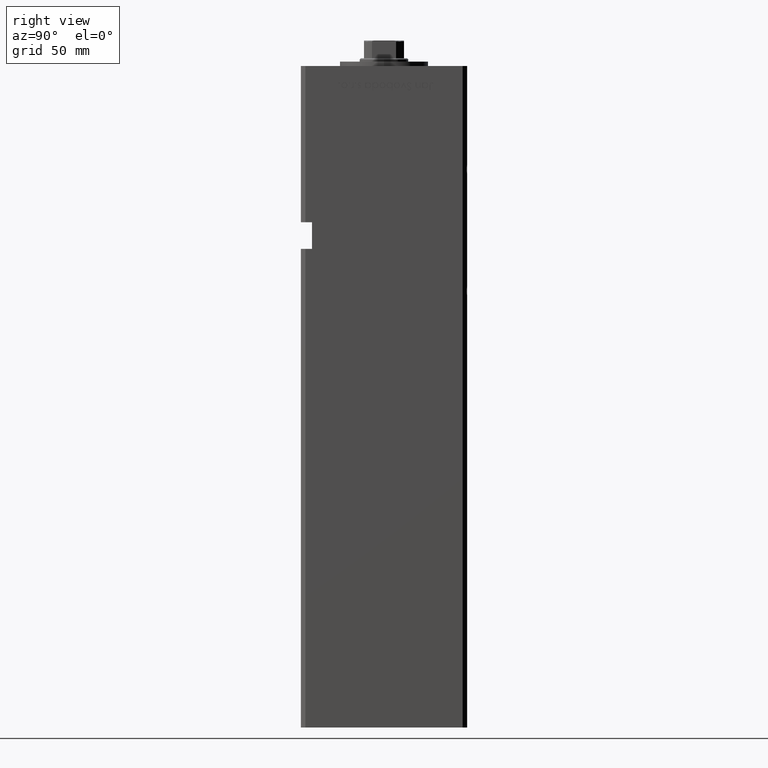
[diagram: clean part render]
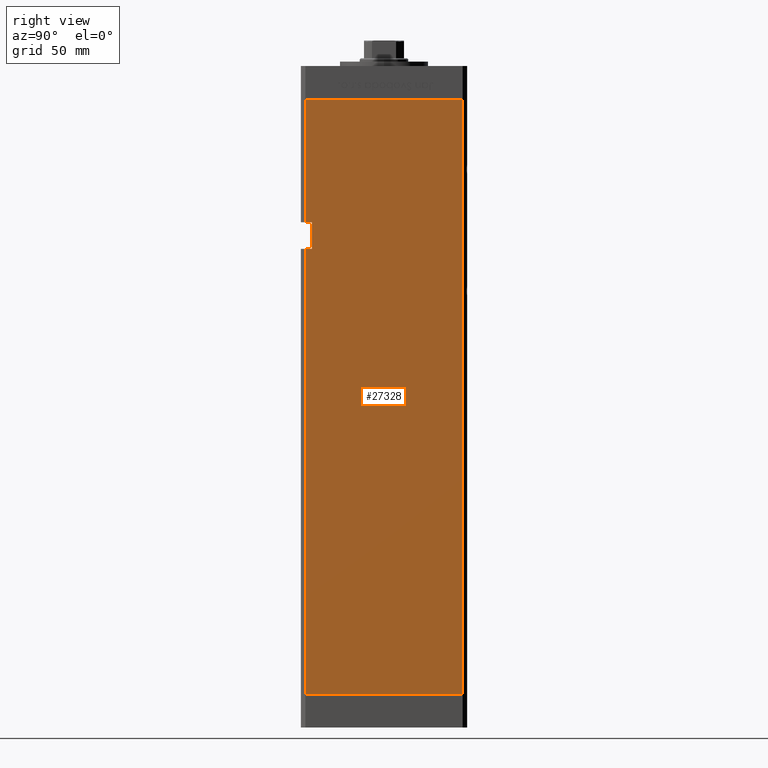
[diagram: same view with one face highlighted and labeled with its STEP entity id]
A machine part, right view. The second image highlights one B-rep face of the part: STEP entity #27328.
In plain terms, the highlighted planar face has unit normal (1, -0, 0).
Its self-contained STEP definition (entity closure, byte-faithful):
#106 = DIRECTION ( 'NONE',  ( 3.909236002201255146E-16, 1.000000000000000000, 0.000000000000000000 ) ) ;
#888 = EDGE_CURVE ( 'NONE', #11026, #38094, #10050, .T. ) ;
#3496 = CARTESIAN_POINT ( 'NONE',  ( 42.50000000000001421, 35.50000000000000711, 0.000000000000000000 ) ) ;
#3582 = ORIENTED_EDGE ( 'NONE', *, *, #48638, .T. ) ;
#5141 = CARTESIAN_POINT ( 'NONE',  ( 42.49999999999998579, -32.50000000000000000, 201.0000000000000000 ) ) ;
#5276 = EDGE_CURVE ( 'NONE', #11026, #23385, #35436, .T. ) ;
#5772 = EDGE_LOOP ( 'NONE', ( #23416, #49137, #46337, #38809, #45162, #3582, #27684, #50198 ) ) ;
#6273 = EDGE_CURVE ( 'NONE', #50740, #19181, #15677, .T. ) ;
#6628 = VECTOR ( 'NONE', #39196, 1000.000000000000000 ) ;
#7871 = DIRECTION ( 'NONE',  ( -3.909236002201255146E-16, -1.000000000000000000, 0.000000000000000000 ) ) ;
#10050 = LINE ( 'NONE', #22697, #42603 ) ;
#11026 = VERTEX_POINT ( 'NONE', #5141 ) ;
#11666 = VECTOR ( 'NONE', #13828, 1000.000000000000000 ) ;
#13558 = LINE ( 'NONE', #30253, #11666 ) ;
#13828 = DIRECTION ( 'NONE',  ( -3.909236002201255146E-16, -1.000000000000000000, 0.000000000000000000 ) ) ;
#15677 = LINE ( 'NONE', #32098, #33321 ) ;
#15953 = FACE_OUTER_BOUND ( 'NONE', #5772, .T. ) ;
#16286 = CARTESIAN_POINT ( 'NONE',  ( 42.49999999999998579, -35.50000000000000711, 268.5000000000000000 ) ) ;
#19181 = VERTEX_POINT ( 'NONE', #33276 ) ;
#19636 = VECTOR ( 'NONE', #29904, 1000.000000000000000 ) ;
#20217 = EDGE_CURVE ( 'NONE', #38094, #38653, #53122, .T. ) ;
#22697 = CARTESIAN_POINT ( 'NONE',  ( 42.49999999999998579, -32.50000000000000711, 201.0000000000000000 ) ) ;
#22752 = CARTESIAN_POINT ( 'NONE',  ( 42.50000000000001421, 35.50000000000000711, 268.5000000000000000 ) ) ;
#23015 = LINE ( 'NONE', #22752, #30390 ) ;
#23385 = VERTEX_POINT ( 'NONE', #44117 ) ;
#23416 = ORIENTED_EDGE ( 'NONE', *, *, #888, .T. ) ;
#27099 = CARTESIAN_POINT ( 'NONE',  ( 42.49999999999998579, -32.50000000000000711, 213.0000000000000284 ) ) ;
#27328 = ADVANCED_FACE ( 'NONE', ( #15953 ), #32373, .T. ) ;
#27684 = ORIENTED_EDGE ( 'NONE', *, *, #44813, .F. ) ;
#28277 = CARTESIAN_POINT ( 'NONE',  ( 42.49999999999998579, -35.50000000000000711, 268.5000000000000000 ) ) ;
#29137 = CARTESIAN_POINT ( 'NONE',  ( 42.50000000000001421, 35.50000000000000711, 268.5000000000000000 ) ) ;
#29372 = CARTESIAN_POINT ( 'NONE',  ( 42.49999999999998579, -32.50000000000000711, 213.0000000000000284 ) ) ;
#29904 = DIRECTION ( 'NONE',  ( -0.000000000000000000, -1.000000000000000000, -0.000000000000000000 ) ) ;
#30253 = CARTESIAN_POINT ( 'NONE',  ( 42.50000000000001421, 35.50000000000000711, 0.000000000000000000 ) ) ;
#30390 = VECTOR ( 'NONE', #39402, 1000.000000000000000 ) ;
#30459 = CARTESIAN_POINT ( 'NONE',  ( 42.49999999999998579, -35.50000000000000711, 0.000000000000000000 ) ) ;
#30511 = DIRECTION ( 'NONE',  ( -0.000000000000000000, -1.000000000000000000, -0.000000000000000000 ) ) ;
#30932 = VECTOR ( 'NONE', #49242, 1000.000000000000000 ) ;
#31104 = EDGE_CURVE ( 'NONE', #50740, #49792, #23015, .T. ) ;
#32098 = CARTESIAN_POINT ( 'NONE',  ( 42.50000000000001421, 35.50000000000000711, 268.5000000000000000 ) ) ;
#32373 = PLANE ( 'NONE',  #39852 ) ;
#32965 = DIRECTION ( 'NONE',  ( -0.000000000000000000, -0.000000000000000000, -1.000000000000000000 ) ) ;
#33276 = CARTESIAN_POINT ( 'NONE',  ( 42.49999999999998579, -35.50000000000000711, 268.5000000000000000 ) ) ;
#33321 = VECTOR ( 'NONE', #7871, 1000.000000000000000 ) ;
#33422 = DIRECTION ( 'NONE',  ( 1.000000000000000000, -3.909236002201255146E-16, 0.000000000000000000 ) ) ;
#35329 = VECTOR ( 'NONE', #32965, 1000.000000000000000 ) ;
#35436 = LINE ( 'NONE', #27099, #6628 ) ;
#37512 = VERTEX_POINT ( 'NONE', #46357 ) ;
#38088 = CARTESIAN_POINT ( 'NONE',  ( 42.49999999999998579, -35.50000000000000711, 201.0000000000000000 ) ) ;
#38094 = VERTEX_POINT ( 'NONE', #38088 ) ;
#38319 = EDGE_CURVE ( 'NONE', #49792, #38653, #13558, .T. ) ;
#38653 = VERTEX_POINT ( 'NONE', #30459 ) ;
#38809 = ORIENTED_EDGE ( 'NONE', *, *, #31104, .F. ) ;
#39196 = DIRECTION ( 'NONE',  ( -0.000000000000000000, -0.000000000000000000, 1.000000000000000000 ) ) ;
#39402 = DIRECTION ( 'NONE',  ( -0.000000000000000000, -0.000000000000000000, -1.000000000000000000 ) ) ;
#39852 = AXIS2_PLACEMENT_3D ( 'NONE', #29137, #33422, #106 ) ;
#42603 = VECTOR ( 'NONE', #30511, 1000.000000000000000 ) ;
#44117 = CARTESIAN_POINT ( 'NONE',  ( 42.49999999999998579, -32.50000000000000711, 213.0000000000000284 ) ) ;
#44197 = CARTESIAN_POINT ( 'NONE',  ( 42.50000000000001421, 35.50000000000000711, 268.5000000000000000 ) ) ;
#44813 = EDGE_CURVE ( 'NONE', #23385, #37512, #49524, .T. ) ;
#44941 = LINE ( 'NONE', #28277, #30932 ) ;
#45162 = ORIENTED_EDGE ( 'NONE', *, *, #6273, .T. ) ;
#46337 = ORIENTED_EDGE ( 'NONE', *, *, #38319, .F. ) ;
#46357 = CARTESIAN_POINT ( 'NONE',  ( 42.49999999999998579, -35.50000000000000711, 213.0000000000000284 ) ) ;
#48638 = EDGE_CURVE ( 'NONE', #19181, #37512, #44941, .T. ) ;
#49137 = ORIENTED_EDGE ( 'NONE', *, *, #20217, .T. ) ;
#49242 = DIRECTION ( 'NONE',  ( -0.000000000000000000, -0.000000000000000000, -1.000000000000000000 ) ) ;
#49524 = LINE ( 'NONE', #29372, #19636 ) ;
#49792 = VERTEX_POINT ( 'NONE', #3496 ) ;
#50198 = ORIENTED_EDGE ( 'NONE', *, *, #5276, .F. ) ;
#50740 = VERTEX_POINT ( 'NONE', #44197 ) ;
#53122 = LINE ( 'NONE', #16286, #35329 ) ;